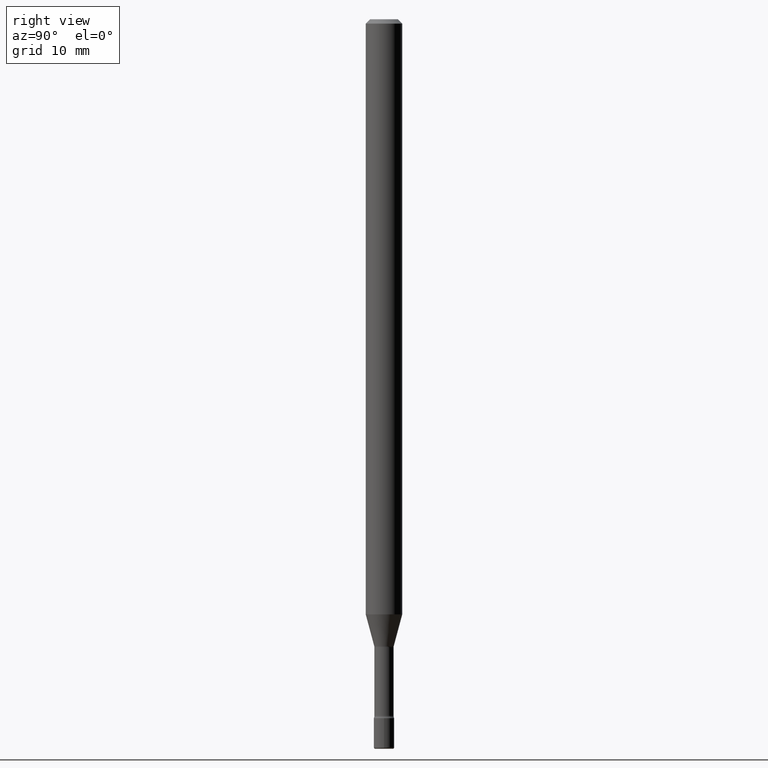
[diagram: clean part render]
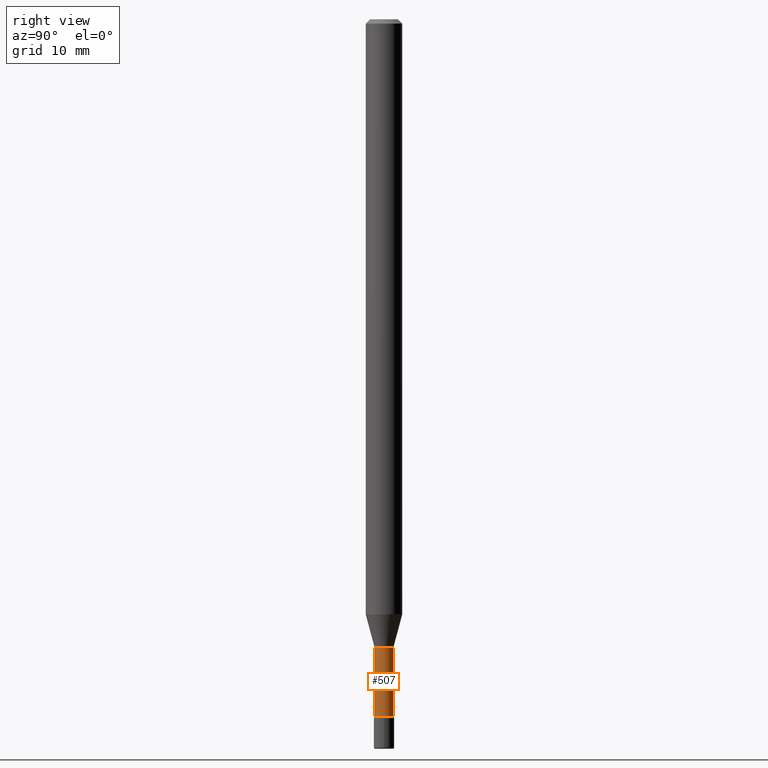
[diagram: same view with one face highlighted and labeled with its STEP entity id]
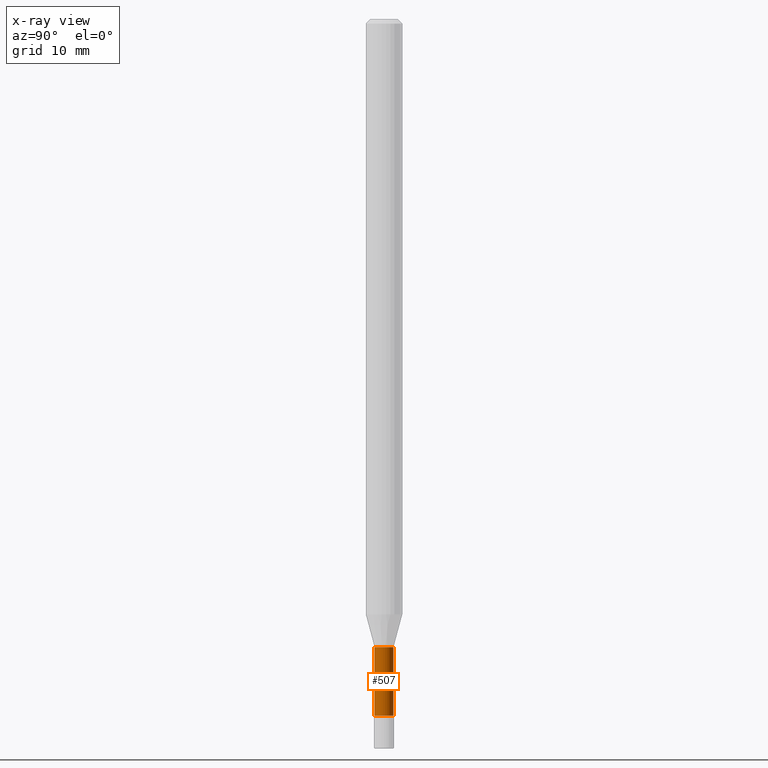
[diagram: x-ray of the same camera — body ghosted, the highlighted face saturated]
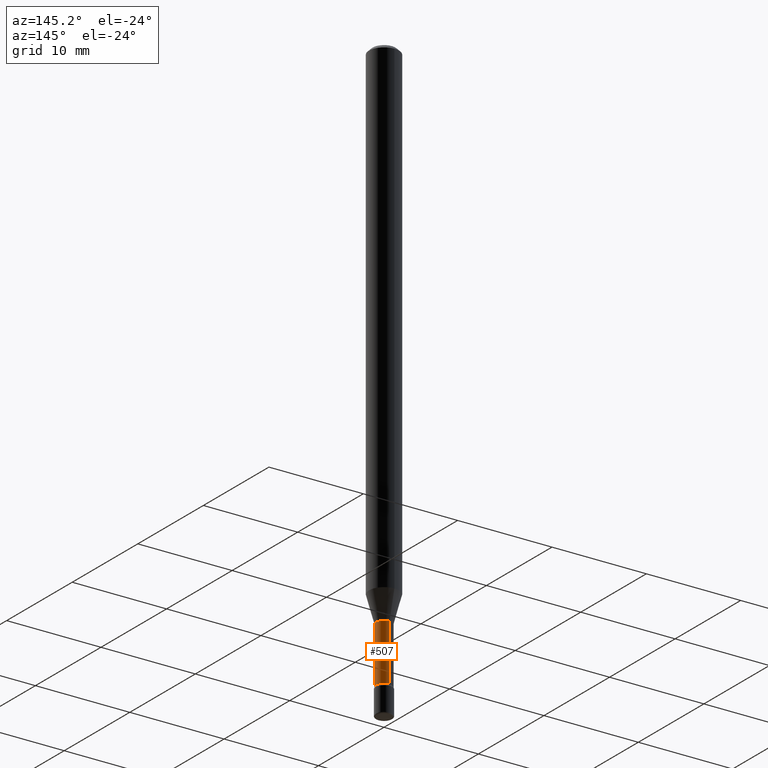
[diagram: same view with one face highlighted and labeled with its STEP entity id]
A machine part, right view. The second image highlights one B-rep face of the part: STEP entity #507.
The next image is the same camera in x-ray: the body ghosted, the highlighted face saturated — about 0% of this face is hidden behind the body in this view.
A second angle (auxiliary view) of the same face is appended — the face is thin or edge-on in the first view.
In plain terms, the highlighted cylindrical surface (edge-blend (fillet) strip) has radius 0.8357 mm, axis along (-0, 0, 1).
Its self-contained STEP definition (entity closure, byte-faithful):
#13 = CARTESIAN_POINT ( 'NONE',  ( 2.412292587906125439E-16, 0.03289999999999167896, -2.387345589506695731 ) ) ;
#45 = CARTESIAN_POINT ( 'NONE',  ( 2.337685600650730011E-16, 0.03290000000000001257, 3.632012522098820413E-16 ) ) ;
#49 = DIRECTION ( 'NONE',  ( -2.445417640947345847E-29, 3.491554610375806299E-15, 1.000000000000000000 ) ) ;
#60 = AXIS2_PLACEMENT_3D ( 'NONE', #248, #156, #347 ) ;
#81 = EDGE_CURVE ( 'NONE', #128, #415, #312, .T. ) ;
#88 = EDGE_CURVE ( 'NONE', #519, #128, #304, .T. ) ;
#107 = DIRECTION ( 'NONE',  ( -6.982962677686266711E-15, -1.000000000000000000, 0.000000000000000000 ) ) ;
#111 = DIRECTION ( 'NONE',  ( -2.445417640947345847E-29, 3.491554610375806299E-15, 1.000000000000000000 ) ) ;
#128 = VERTEX_POINT ( 'NONE', #13 ) ;
#156 = DIRECTION ( 'NONE',  ( -2.445417640947345847E-29, 3.491554610375806299E-15, 1.000000000000000000 ) ) ;
#208 = VERTEX_POINT ( 'NONE', #556 ) ;
#230 = CARTESIAN_POINT ( 'NONE',  ( 5.262477108137919404E-29, -7.513737490581766135E-15, -2.151974787463811101 ) ) ;
#248 = CARTESIAN_POINT ( 'NONE',  ( -1.169113584055446105E-44, 1.669184350826100908E-30, 4.780733988912460139E-16 ) ) ;
#250 = CYLINDRICAL_SURFACE ( 'NONE', #60, 0.03290000000000001257 ) ;
#256 = CIRCLE ( 'NONE', #338, 0.03289999999999999869 ) ;
#277 = EDGE_LOOP ( 'NONE', ( #303, #409, #509, #416 ) ) ;
#303 = ORIENTED_EDGE ( 'NONE', *, *, #88, .T. ) ;
#304 = CIRCLE ( 'NONE', #430, 0.03290000000000001951 ) ;
#312 = LINE ( 'NONE', #45, #361 ) ;
#337 = LINE ( 'NONE', #508, #521 ) ;
#338 = AXIS2_PLACEMENT_3D ( 'NONE', #230, #503, #107 ) ;
#347 = DIRECTION ( 'NONE',  ( -6.982962677686265133E-15, -1.000000000000000000, 3.491554610375807088E-15 ) ) ;
#361 = VECTOR ( 'NONE', #487, 39.37007874015748143 ) ;
#375 = CARTESIAN_POINT ( 'NONE',  ( 2.337685600651314262E-16, 0.03289999999999249081, -2.151974787463811101 ) ) ;
#409 = ORIENTED_EDGE ( 'NONE', *, *, #81, .T. ) ;
#415 = VERTEX_POINT ( 'NONE', #375 ) ;
#416 = ORIENTED_EDGE ( 'NONE', *, *, #477, .F. ) ;
#430 = AXIS2_PLACEMENT_3D ( 'NONE', #481, #49, #434 ) ;
#431 = EDGE_CURVE ( 'NONE', #208, #415, #256, .T. ) ;
#434 = DIRECTION ( 'NONE',  ( -6.982962677686265133E-15, -1.000000000000000000, 0.000000000000000000 ) ) ;
#472 = FACE_OUTER_BOUND ( 'NONE', #277, .T. ) ;
#477 = EDGE_CURVE ( 'NONE', #519, #208, #337, .T. ) ;
#481 = CARTESIAN_POINT ( 'NONE',  ( 5.838057019617513987E-29, -8.335547499602452744E-15, -2.387345589506695731 ) ) ;
#487 = DIRECTION ( 'NONE',  ( -2.445417640947345847E-29, 3.491554610375806299E-15, 1.000000000000000000 ) ) ;
#503 = DIRECTION ( 'NONE',  ( -2.445417640947345847E-29, 3.491554610375806299E-15, 1.000000000000000000 ) ) ;
#507 = ADVANCED_FACE ( 'NONE', ( #472 ), #250, .T. ) ;
#508 = CARTESIAN_POINT ( 'NONE',  ( -2.297394720958782020E-16, -0.03290000000000001257, 5.929455455726101838E-16 ) ) ;
#509 = ORIENTED_EDGE ( 'NONE', *, *, #431, .F. ) ;
#519 = VERTEX_POINT ( 'NONE', #569 ) ;
#521 = VECTOR ( 'NONE', #111, 39.37007874015748143 ) ;
#556 = CARTESIAN_POINT ( 'NONE',  ( -2.297394720958255455E-16, -0.03290000000000751351, -2.151974787463811101 ) ) ;
#569 = CARTESIAN_POINT ( 'NONE',  ( -2.297394720958198756E-16, -0.03290000000000835312, -2.387345589506695731 ) ) ;